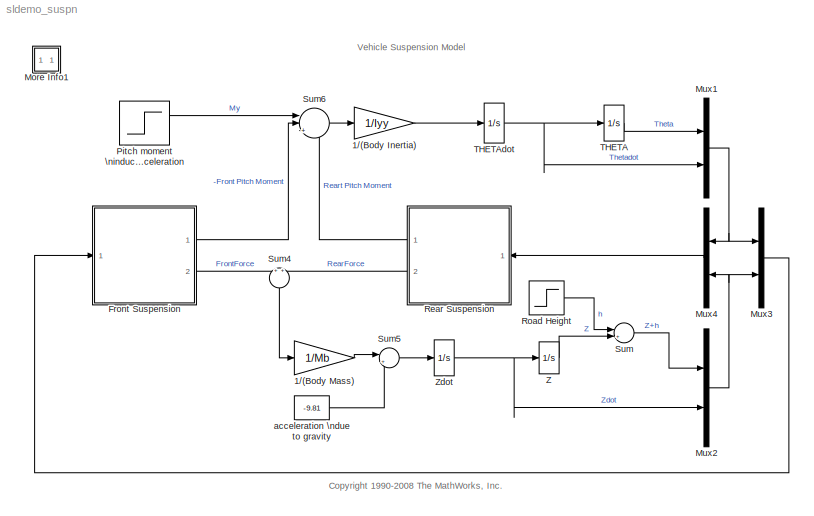
MODEL sldemo_suspn
KIND model
CONFIG StopFcn = if exist('sldemo_suspn_output')\nsldemo_suspgraph\nend
WORKSPACE source: external: M-Code  (data not in archive)
BLOCK [Gain] 1//(Body Inertia)
  Gain = 1/Iyy
  OutDataType = sfix(16)
  OutScaling = 2^0
  ParameterDataType = sfix(16)
  ParameterScaling = 2^0
BLOCK [Gain] 1//(Body Mass)
  Gain = 1/Mb
  OutDataType = sfix(16)
  OutScaling = 2^0
  ParameterDataType = sfix(16)
  ParameterScaling = 2^0
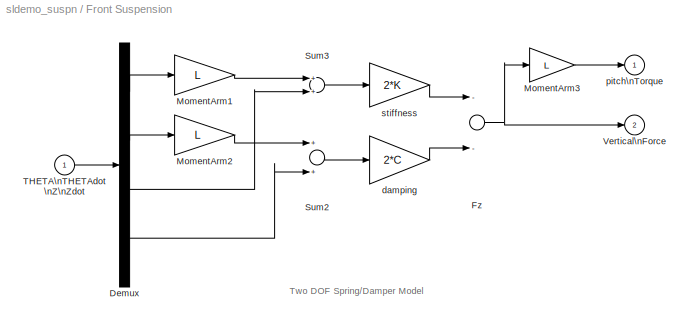
BLOCK [SubSystem] Front Suspension
  FunctionWithSeparateData = off
  MaskCallbackString = ||
  MaskDescription = Half-Car Suspension\nThe spring and damping rates for an individual wheel are entered below.  Their combined effect as applied to two wheels at the specified distance from the center of mass is computed.  The distance should be specified as positive if the subsystem is oriented such that increasing z corresponds to increasing theta, negative otherwise.
  MaskDisplay = plot(-1, 0, 13, 12, [1 12], [11 11], [1 5], [2 2], [1 2], [4.5 5], [2 0], [5 6], [0 2], [6 7], [2 0], [7 8], [0 1], [8 8.5], [1 1], [8.5 11], [1 1], [2 4.5], [5 5], [2 5], [4 6], [5 5], [4 4], [5 8], [6 6], [5 8], [4 6], [6.5 6.5], [5 5], [6.5 11], [0 1], [1 2], [2 3], [1 2], [4 5], [1 2])
  MaskEnableString = on,on,on
  MaskHelp = See \"Using Simulink and Stateflow in Automotive Applications\" for a mathematical derivation of the subsystem operation.  Contact your MathWorks distributor to obtain a copy.
  MaskHideContents = off
  MaskIconFrame = on
  MaskIconOpaque = on
  MaskIconRotate = port
  MaskIconUnits = autoscale
  MaskPromptString = Stiffness = spring rate:|Damping rate:|Moment arm:
  MaskStyleString = edit,edit,edit
  MaskTabNameString = ,,
  MaskToolTipString = on,on,on
  MaskTunableValueString = on,on,on
  MaskType = half-car suspension
  MaskValueString = kf|cf|-Lf
  MaskVarAliasString = ,,
  MaskVariables = K=@1;C=@2;L=@3;
  MaskVisibilityString = on,on,on
  MinAlgLoopOccurrences = off
  Opaque = off
  Ports = [1, 2]
  PropExecContextOutsideSubsystem = off
  RTWSystemCode = Auto
  RequestExecContextInheritance = off
  ShowPortLabels = none
BLOCK [Demux] Front Suspension/Demux
  Ports = [1, 4]
BLOCK [Sum] Front Suspension/Fz
  Inputs = --
  OutDataType = sfix(16)
  OutScaling = 2^0
  Ports = [2, 1]
BLOCK [Gain] Front Suspension/MomentArm1
  Gain = L
  OutDataType = sfix(16)
  OutScaling = 2^0
  ParameterDataType = sfix(16)
  ParameterScaling = 2^0
BLOCK [Gain] Front Suspension/MomentArm2
  Gain = L
  OutDataType = sfix(16)
  OutScaling = 2^0
  ParameterDataType = sfix(16)
  ParameterScaling = 2^0
BLOCK [Gain] Front Suspension/MomentArm3
  Gain = L
  OutDataType = sfix(16)
  OutScaling = 2^0
  ParameterDataType = sfix(16)
  ParameterScaling = 2^0
BLOCK [Sum] Front Suspension/Sum2
  OutDataType = sfix(16)
  OutScaling = 2^0
  Ports = [2, 1]
BLOCK [Sum] Front Suspension/Sum3
  OutDataType = sfix(16)
  OutScaling = 2^0
  Ports = [2, 1]
BLOCK [Inport] Front Suspension/THETA\nTHETAdot\nZ\nZdot
  IconDisplay = Port number
  OutDataType = sfix(16)
  OutScaling = 2^0
BLOCK [Outport] Front Suspension/Vertical\nForce
  IconDisplay = Port number
  OutDataType = sfix(16)
  OutScaling = 2^0
  Port = 2
BLOCK [Gain] Front Suspension/damping
  Gain = 2*C
  OutDataType = sfix(16)
  OutScaling = 2^0
  ParameterDataType = sfix(16)
  ParameterScaling = 2^0
BLOCK [Outport] Front Suspension/pitch\nTorque
  IconDisplay = Port number
  OutDataType = sfix(16)
  OutScaling = 2^0
BLOCK [Gain] Front Suspension/stiffness
  Gain = 2*K
  OutDataType = sfix(16)
  OutScaling = 2^0
  ParameterDataType = sfix(16)
  ParameterScaling = 2^0
BLOCK [SubSystem] More Info1
  FunctionWithSeparateData = off
  MaskDisplay = disp('?')
  MaskHideContents = off
  MaskIconFrame = on
  MaskIconOpaque = on
  MaskIconRotate = none
  MaskIconUnits = autoscale
  MinAlgLoopOccurrences = off
  Opaque = off
  OpenFcn = showdemo(bdroot(gcb))
  Ports = []
  PropExecContextOutsideSubsystem = off
  RTWSystemCode = Auto
  RequestExecContextInheritance = off
BLOCK [Mux] Mux1
  DisplayOption = signals
  Inputs = 2
  Ports = [2, 1]
BLOCK [Mux] Mux2
  DisplayOption = signals
  Inputs = 2
  Ports = [2, 1]
BLOCK [Mux] Mux3
  DisplayOption = signals
  Inputs = 2
  Ports = [2, 1]
BLOCK [Mux] Mux4
  DisplayOption = signals
  Inputs = 2
  Ports = [2, 1]
BLOCK [Step] Pitch moment \ninduced by \nvehicle acceleration
  After = 100
  SampleTime = 0
  Time = 3
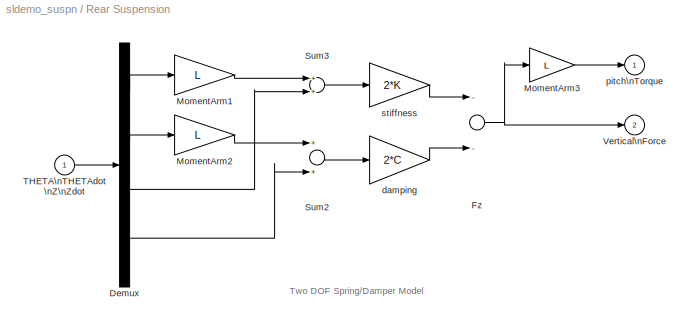
BLOCK [SubSystem] Rear Suspension
  FunctionWithSeparateData = off
  MaskCallbackString = ||
  MaskDescription = Half-Car Suspension\nThe spring and damping rates for an individual wheel are entered below.  Their combined effect as applied to two wheels at the specified distance from the center of mass is computed.  The distance should be specified as positive if the subsystem is oriented such that increasing z corresponds to increasing theta, negative otherwise.
  MaskDisplay = plot(-1, 0, 13, 12, [1 12], [11 11], [1 5], [2 2], [1 2], [4.5 5], [2 0], [5 6], [0 2], [6 7], [2 0], [7 8], [0 1], [8 8.5], [1 1], [8.5 11], [1 1], [2 4.5], [5 5], [2 5], [4 6], [5 5], [4 4], [5 8], [6 6], [5 8], [4 6], [6.5 6.5], [5 5], [6.5 11], [0 1], [1 2], [2 3], [1 2], [4 5], [1 2])
  MaskEnableString = on,on,on
  MaskHelp = See \"Using Simulink and Stateflow in Automotive Applications\" for a mathematical derivation of the subsystem operation.  Contact your MathWorks distributor to obtain a copy.
  MaskHideContents = off
  MaskIconFrame = on
  MaskIconOpaque = on
  MaskIconRotate = port
  MaskIconUnits = autoscale
  MaskPromptString = Stiffness = spring rate:|Damping rate:|Moment arm:
  MaskStyleString = edit,edit,edit
  MaskTabNameString = ,,
  MaskToolTipString = on,on,on
  MaskTunableValueString = on,on,on
  MaskType = half-car suspension
  MaskValueString = kr|cr|Lr
  MaskVarAliasString = ,,
  MaskVariables = K=@1;C=@2;L=@3;
  MaskVisibilityString = on,on,on
  MinAlgLoopOccurrences = off
  Opaque = off
  Ports = [1, 2]
  PropExecContextOutsideSubsystem = off
  RTWSystemCode = Auto
  RequestExecContextInheritance = off
  ShowPortLabels = none
BLOCK [Demux] Rear Suspension/Demux
  Ports = [1, 4]
BLOCK [Sum] Rear Suspension/Fz
  Inputs = --
  OutDataType = sfix(16)
  OutScaling = 2^0
  Ports = [2, 1]
BLOCK [Gain] Rear Suspension/MomentArm1
  Gain = L
  OutDataType = sfix(16)
  OutScaling = 2^0
  ParameterDataType = sfix(16)
  ParameterScaling = 2^0
BLOCK [Gain] Rear Suspension/MomentArm2
  Gain = L
  OutDataType = sfix(16)
  OutScaling = 2^0
  ParameterDataType = sfix(16)
  ParameterScaling = 2^0
BLOCK [Gain] Rear Suspension/MomentArm3
  Gain = L
  OutDataType = sfix(16)
  OutScaling = 2^0
  ParameterDataType = sfix(16)
  ParameterScaling = 2^0
BLOCK [Sum] Rear Suspension/Sum2
  OutDataType = sfix(16)
  OutScaling = 2^0
  Ports = [2, 1]
BLOCK [Sum] Rear Suspension/Sum3
  OutDataType = sfix(16)
  OutScaling = 2^0
  Ports = [2, 1]
BLOCK [Inport] Rear Suspension/THETA\nTHETAdot\nZ\nZdot
  IconDisplay = Port number
  OutDataType = sfix(16)
  OutScaling = 2^0
BLOCK [Outport] Rear Suspension/Vertical\nForce
  IconDisplay = Port number
  OutDataType = sfix(16)
  OutScaling = 2^0
  Port = 2
BLOCK [Gain] Rear Suspension/damping
  Gain = 2*C
  OutDataType = sfix(16)
  OutScaling = 2^0
  ParameterDataType = sfix(16)
  ParameterScaling = 2^0
BLOCK [Outport] Rear Suspension/pitch\nTorque
  IconDisplay = Port number
  OutDataType = sfix(16)
  OutScaling = 2^0
BLOCK [Gain] Rear Suspension/stiffness
  Gain = 2*K
  OutDataType = sfix(16)
  OutScaling = 2^0
  ParameterDataType = sfix(16)
  ParameterScaling = 2^0
BLOCK [Step] Road Height
  After = 0.01
  SampleTime = 0
  Time = 7
BLOCK [Sum] Sum
  IconShape = round
  InputSameDT = off
  Inputs = |++
  OutDataType = sfix(16)
  OutDataTypeMode = Inherit via internal rule
  OutDataTypeStr = Inherit: Inherit via internal rule
  OutScaling = 2^0
  Ports = [2, 1]
  SaturateOnIntegerOverflow = off
BLOCK [Sum] Sum4
  IconShape = round
  OutDataType = sfix(16)
  OutScaling = 2^0
  Ports = [2, 1]
BLOCK [Sum] Sum5
  IconShape = round
  Inputs = |++
  OutDataType = sfix(16)
  OutScaling = 2^0
  Ports = [2, 1]
BLOCK [Sum] Sum6
  IconShape = round
  Inputs = ||+++
  OutDataType = sfix(16)
  OutScaling = 2^0
  Ports = [3, 1]
BLOCK [Integrator] THETA
  InitialCondition = -8.7e-20
  Ports = [1, 1]
BLOCK [Integrator] THETAdot
  InitialCondition = 8.04e-28
  Ports = [1, 1]
BLOCK [Integrator] Z
  InitialCondition = -0.12
  Ports = [1, 1]
BLOCK [Integrator] Zdot
  Ports = [1, 1]
BLOCK [Constant] acceleration \ndue to gravity
  OutDataType = sfix(16)
  OutScaling = 2^0
  Value = -9.81
ANNOTATION (root): <copyright redacted>
ANNOTATION (root): Vehicle Suspension Model
ANNOTATION Front Suspension: Two DOF Spring/Damper Model
ANNOTATION Rear Suspension: Two DOF Spring/Damper Model
LINE 1//(Body Inertia):1 -> THETAdot:1
LINE 1//(Body Mass):1 -> Sum5:1
LINE Front Suspension/Demux:1 -> Front Suspension/MomentArm1:1
LINE Front Suspension/Demux:2 -> Front Suspension/MomentArm2:1
LINE Front Suspension/Demux:3 -> Front Suspension/Sum3:2
LINE Front Suspension/Demux:4 -> Front Suspension/Sum2:2
NET Front Suspension/Fz:1 -> Front Suspension/MomentArm3:1, Front Suspension/Vertical\nForce:1
LINE Front Suspension/MomentArm1:1 -> Front Suspension/Sum3:1
LINE Front Suspension/MomentArm2:1 -> Front Suspension/Sum2:1
LINE Front Suspension/MomentArm3:1 -> Front Suspension/pitch\nTorque:1
LINE Front Suspension/Sum2:1 -> Front Suspension/damping:1
LINE Front Suspension/Sum3:1 -> Front Suspension/stiffness:1
LINE Front Suspension/THETA\nTHETAdot\nZ\nZdot:1 -> Front Suspension/Demux:1
LINE Front Suspension/damping:1 -> Front Suspension/Fz:2
LINE Front Suspension/stiffness:1 -> Front Suspension/Fz:1
LINE Front Suspension:1 -> Sum6:2
LINE Front Suspension:2 -> Sum4:1
NET Mux1:1 -> Mux3:1, Mux4:1
NET Mux2:1 -> Mux3:2, Mux4:2
LINE Mux3:1 -> Front Suspension:1
LINE Mux4:1 -> Rear Suspension:1
LINE Pitch moment \ninduced by \nvehicle acceleration:1 -> Sum6:1
LINE Rear Suspension/Demux:1 -> Rear Suspension/MomentArm1:1
LINE Rear Suspension/Demux:2 -> Rear Suspension/MomentArm2:1
LINE Rear Suspension/Demux:3 -> Rear Suspension/Sum3:2
LINE Rear Suspension/Demux:4 -> Rear Suspension/Sum2:2
NET Rear Suspension/Fz:1 -> Rear Suspension/MomentArm3:1, Rear Suspension/Vertical\nForce:1
LINE Rear Suspension/MomentArm1:1 -> Rear Suspension/Sum3:1
LINE Rear Suspension/MomentArm2:1 -> Rear Suspension/Sum2:1
LINE Rear Suspension/MomentArm3:1 -> Rear Suspension/pitch\nTorque:1
LINE Rear Suspension/Sum2:1 -> Rear Suspension/damping:1
LINE Rear Suspension/Sum3:1 -> Rear Suspension/stiffness:1
LINE Rear Suspension/THETA\nTHETAdot\nZ\nZdot:1 -> Rear Suspension/Demux:1
LINE Rear Suspension/damping:1 -> Rear Suspension/Fz:2
LINE Rear Suspension/stiffness:1 -> Rear Suspension/Fz:1
LINE Rear Suspension:1 -> Sum6:3
LINE Rear Suspension:2 -> Sum4:2
LINE Road Height:1 -> Sum:1
LINE Sum4:1 -> 1//(Body Mass):1
LINE Sum5:1 -> Zdot:1
LINE Sum6:1 -> 1//(Body Inertia):1
LINE Sum:1 -> Mux2:1
LINE THETA:1 -> Mux1:1
NET THETAdot:1 -> Mux1:2, THETA:1
LINE Z:1 -> Sum:2
NET Zdot:1 -> Mux2:2, Z:1
LINE acceleration \ndue to gravity:1 -> Sum5:2
note: NET lines group one-source signal fan-out (src -> all destinations, sorted); 1:1 wires keep LINE
